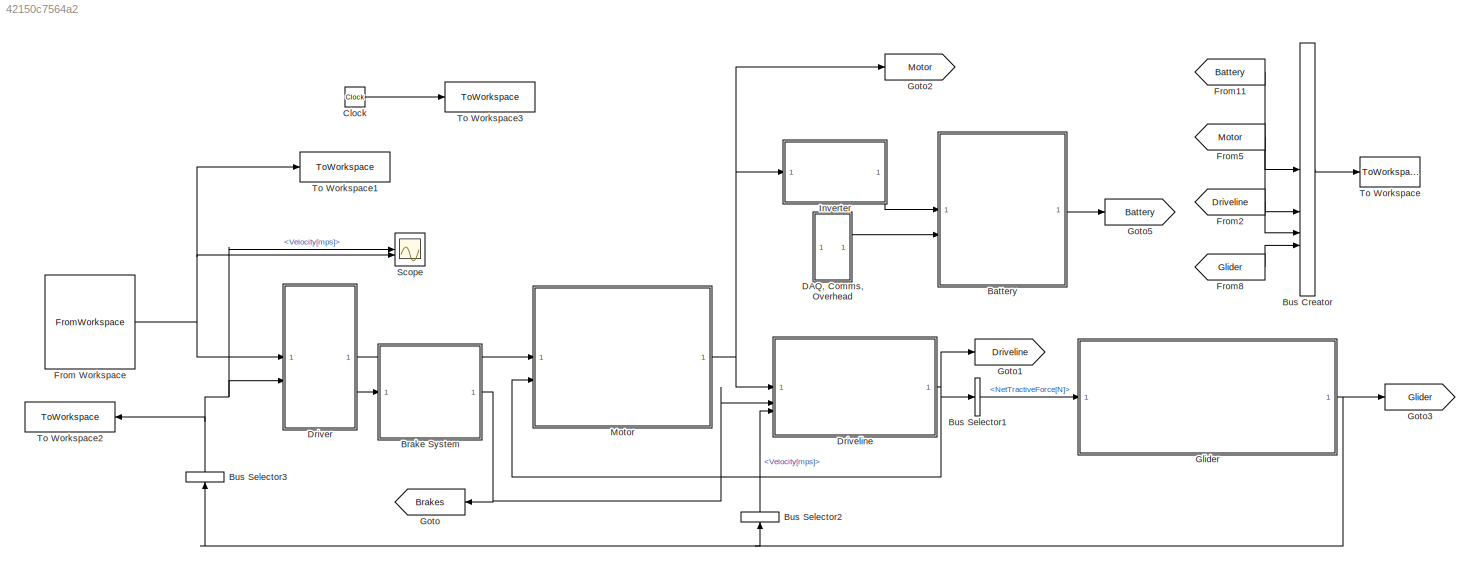
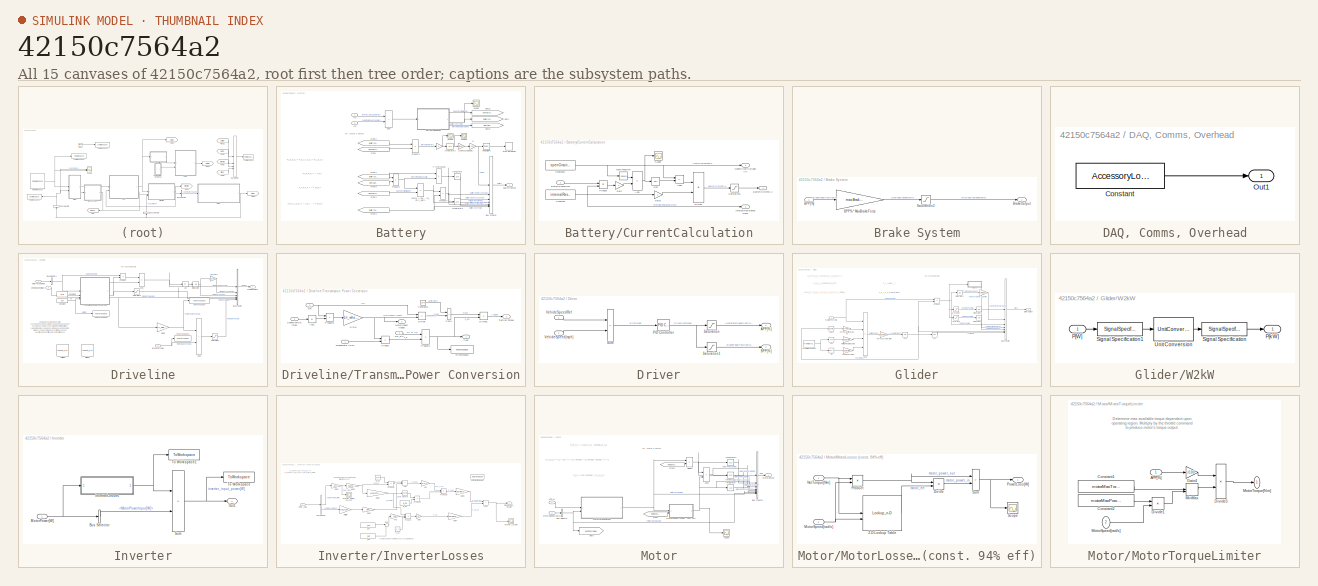
[diagram: thumbnail index - all 15 canvases of the model, root first then tree order]
MODEL slx_42150c7564a2
KIND model
CONFIG AbsTol = auto
CONFIG EnableMultiTasking = off
CONFIG FixedStep = auto
CONFIG MaxStep = auto
CONFIG MinStep = auto
CONFIG RelTol = 1e-3
CONFIG SampleTimeConstraint = Unconstrained
CONFIG SolverName = FixedStepAuto
CONFIG StartTime = 0.0
CONFIG StopTime = StopTime
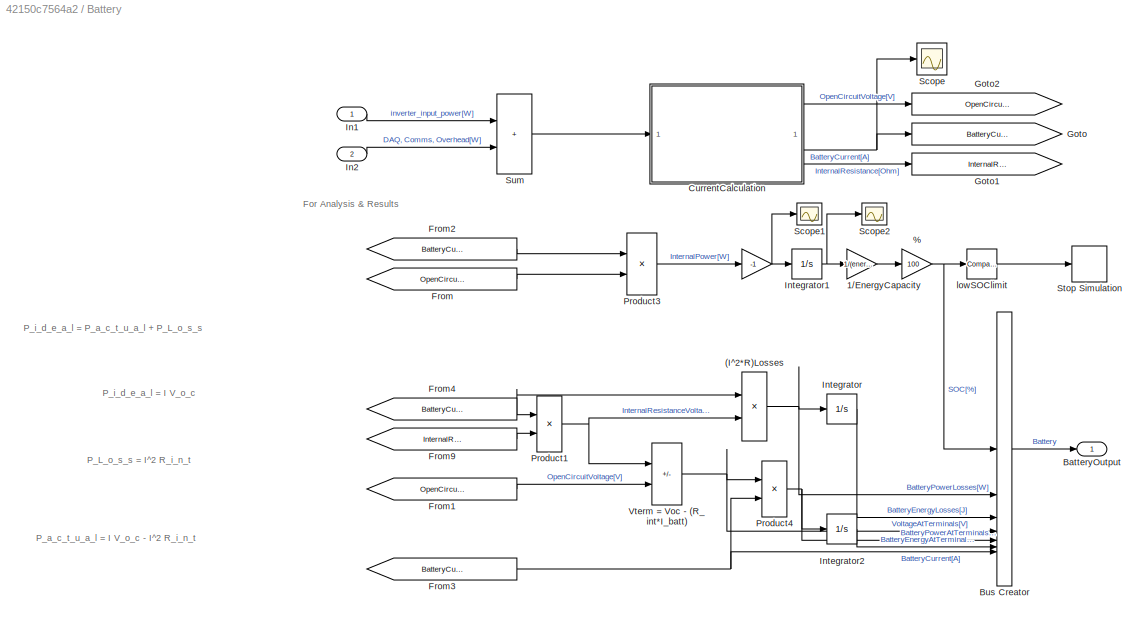
BLOCK [SubSystem] Battery
BLOCK [Gain] Battery/ 
  Gain = -1
BLOCK [Gain] Battery/%
  Gain = 100
BLOCK [Product] Battery/(I^2*R)Losses
  NameLocation = top
  RndMeth = Zero
BLOCK [Gain] Battery/1//EnergyCapacity
  Gain = 1/(energyCapacity*3600*1000)
BLOCK [Outport] Battery/BatteryOutput
  VectorParamsAs1DForOutWhenUnconnected = off
BLOCK [BusCreator] Battery/Bus Creator
  DisplayOption = bar
  InheritFromInputs = on
  Inputs = 7
BLOCK [SubSystem] Battery/CurrentCalculation
BLOCK [Sum] Battery/CurrentCalculation/Add
  IconShape = rectangular
  Inputs = +-
BLOCK [Sum] Battery/CurrentCalculation/Add1
  IconShape = rectangular
  Inputs = +-
BLOCK [Outport] Battery/CurrentCalculation/BatteryCurrent[A]
  Port = 2
  VectorParamsAs1DForOutWhenUnconnected = off
BLOCK [Inport] Battery/CurrentCalculation/BatteryPower[W]
BLOCK [Constant] Battery/CurrentCalculation/Constant
  Value = internalResistance
BLOCK [Constant] Battery/CurrentCalculation/Constant1
  Value = openCircuitVoltage
BLOCK [Product] Battery/CurrentCalculation/Divide
  Inputs = */
BLOCK [Gain] Battery/CurrentCalculation/Gain
  Gain = 4
BLOCK [Gain] Battery/CurrentCalculation/Gain1
  Gain = 2
BLOCK [Outport] Battery/CurrentCalculation/InternalResistance[Ohm]
  Port = 3
  VectorParamsAs1DForOutWhenUnconnected = off
BLOCK [Math] Battery/CurrentCalculation/Math Function
  Operator = square
  SignedPower = on
BLOCK [Outport] Battery/CurrentCalculation/OpenCircuitVoltage[V]
  VectorParamsAs1DForOutWhenUnconnected = off
BLOCK [Product] Battery/CurrentCalculation/Product
  RndMeth = Zero
BLOCK [Saturate] Battery/CurrentCalculation/Saturation1
  LowerLimit = 0
  UpperLimit = 40
  ZeroCross = off
BLOCK [Scope] Battery/CurrentCalculation/Scope
  Floating = off
  NumInputPorts = 1
  ScopeSpecificationString = Simulink.scopes.TimeScopeBlockCfg('CurrentConfiguration', extmgr.ConfigurationSet(extmgr.Configuration('Core','General UI',true),extmgr.Configuration('Core','Source UI',true),extmgr.Configuration('Sources','WiredSimulink',true,'DataLoggingVariableName','ScopeData3'),extmgr.Configuration('Visuals','Time Domain',true,'SerializedDisplays',{struct('MinYLimReal','2571.89407','MaxYLimReal','2717.81177',...<+1525ch>
BLOCK [Sqrt] Battery/CurrentCalculation/Sqrt
BLOCK [From] Battery/From
  GotoTag = OpenCircuitVoltage_V
BLOCK [From] Battery/From1
  GotoTag = OpenCircuitVoltage_V
BLOCK [From] Battery/From2
  GotoTag = BatteryCurrent_A
BLOCK [From] Battery/From3
  GotoTag = BatteryCurrent_A
BLOCK [From] Battery/From4
  GotoTag = BatteryCurrent_A
BLOCK [From] Battery/From9
  GotoTag = InternalResistance_Ohm
BLOCK [Goto] Battery/Goto
  GotoTag = BatteryCurrent_A
BLOCK [Goto] Battery/Goto1
  GotoTag = InternalResistance_Ohm
BLOCK [Goto] Battery/Goto2
  GotoTag = OpenCircuitVoltage_V
BLOCK [Inport] Battery/In1
BLOCK [Inport] Battery/In2
  Port = 2
BLOCK [Integrator] Battery/Integrator
  ZeroCross = off
BLOCK [Integrator] Battery/Integrator1
  InitialCondition = energyCapacity*3600*1000*initialSOC
  ZeroCross = off
BLOCK [Integrator] Battery/Integrator2
BLOCK [Product] Battery/Product1
  RndMeth = Zero
BLOCK [Product] Battery/Product3
  RndMeth = Zero
BLOCK [Product] Battery/Product4
  RndMeth = Zero
BLOCK [Scope] Battery/Scope
  Floating = off
  NumInputPorts = 1
  ScopeSpecificationString = Simulink.scopes.TimeScopeBlockCfg('CurrentConfiguration', extmgr.ConfigurationSet(extmgr.Configuration('Core','General UI',true),extmgr.Configuration('Core','Source UI',true),extmgr.Configuration('Sources','WiredSimulink',true),extmgr.Configuration('Visuals','Time Domain',true,'SerializedDisplays',{struct('MinYLimReal','-1.31995','MaxYLimReal','12.63193','YLabelReal','','MinYLimMag','0.00000','Max...<+1459ch>
BLOCK [Scope] Battery/Scope1
  Floating = off
  NumInputPorts = 1
  ScopeSpecificationString = Simulink.scopes.TimeScopeBlockCfg('CurrentConfiguration', extmgr.ConfigurationSet(extmgr.Configuration('Core','General UI',true),extmgr.Configuration('Core','Source UI',true),extmgr.Configuration('Sources','WiredSimulink',true,'DataLoggingVariableName','ScopeData1'),extmgr.Configuration('Visuals','Time Domain',true,'SerializedDisplays',{struct('MinYLimReal','-667.87189','MaxYLimReal','69.87434','Y...<+1515ch>
BLOCK [Scope] Battery/Scope2
  Floating = off
  NumInputPorts = 1
  ScopeSpecificationString = Simulink.scopes.TimeScopeBlockCfg('CurrentConfiguration', extmgr.ConfigurationSet(extmgr.Configuration('Core','General UI',true),extmgr.Configuration('Core','Source UI',true),extmgr.Configuration('Sources','WiredSimulink',true,'DataLoggingVariableName','ScopeData2'),extmgr.Configuration('Visuals','Time Domain',true,'SerializedDisplays',{struct('MinYLimReal','6360199.30492','MaxYLimReal','6893311.1...<+1559ch>
BLOCK [Stop] Battery/Stop Simulation
BLOCK [Sum] Battery/Sum
  IconShape = rectangular
BLOCK [Sum] Battery/Vterm = Voc - (R_int*I_batt)
  IconShape = rectangular
  Inputs = -+
BLOCK [Reference] Battery/lowSOClimit  REF=simulink/Logic and Bit
Operations/Compare
To Constant
  SourceBlock = simulink/Logic and Bit\nOperations/Compare\nTo Constant
  SourceType = Compare To Constant
BLOCK [SubSystem] Brake System
BLOCK [Gain] Brake System/BPP% * MaxBrakeForce
  Gain = maxBrakeForce/100
BLOCK [Inport] Brake System/BPP[%]
BLOCK [Outport] Brake System/BrakeOutput
  VectorParamsAs1DForOutWhenUnconnected = off
BLOCK [Saturate] Brake System/Saturation2
  LowerLimit = -maxBrakeForce
  UpperLimit = 0
  ZeroCross = off
BLOCK [BusCreator] Bus Creator
  DisplayOption = bar
  InheritFromInputs = on
  Inputs = 4
BLOCK [BusSelector] Bus Selector1
  OutputSignals = NetTractiveForce[N]
BLOCK [BusSelector] Bus Selector2
  NameLocation = right
  OutputSignals = Velocity[mps]
BLOCK [BusSelector] Bus Selector3
  NameLocation = right
  OutputSignals = Velocity[mps]
BLOCK [Clock] Clock
BLOCK [SubSystem] DAQ, Comms, Overhead
BLOCK [Constant] DAQ, Comms, Overhead/Constant
  Value = AccessoryLoad
BLOCK [Outport] DAQ, Comms, Overhead/Out1
BLOCK [SubSystem] Driveline
BLOCK [Gain] Driveline/1//Rw1
  Gain = 1/r_wheel
BLOCK [Abs] Driveline/Abs
  SaturateOnIntegerOverflow = off
  ZeroCross = off
BLOCK [Sum] Driveline/Add3
  IconShape = rectangular
BLOCK [Inport] Driveline/BrakeForce[N]
  Port = 2
BLOCK [BusCreator] Driveline/Bus Creator
  DisplayOption = bar
  InheritFromInputs = on
  Inputs = 6
BLOCK [BusSelector] Driveline/Bus Selector1
  OutputSignals = MotorTorque[Nm]
BLOCK [Constant] Driveline/Constant
  Value = 0.97
BLOCK [Constant] Driveline/Constant1
  Value = GR
BLOCK [Outport] Driveline/DrivelineOutput
  VectorParamsAs1DForOutWhenUnconnected = off
BLOCK [Lookup_n-D] Driveline/Eff of GR
  BreakpointsForDimension1 = GRs
  InputPortMap = u0
  InternalRulePriority = Speed
  NumberOfTableDimensions = 1
  RndMeth = Simplest
  Table = transmission_efficiency
BLOCK [Integrator] Driveline/Integrator
  ZeroCross = off
BLOCK [Gain] Driveline/J_to_kWh
  Gain = .000278/1000
BLOCK [Inport] Driveline/MotorTorque[Nm]
BLOCK [Product] Driveline/Product
BLOCK [Saturate] Driveline/Saturation1
  LowerLimit = -maxBrakeForce
  UpperLimit = 5000
  ZeroCross = off
BLOCK [Saturate] Driveline/Saturation3
  LowerLimit = 0.00001
  UpperLimit = inf
  ZeroCross = off
BLOCK [Lookup_n-D] Driveline/Shift Map
  BreakpointsForDimension1 = [1:3]
  BreakpointsForDimension2 = [1:3]
  InputPortMap = u0,u1
  InternalRulePriority = Speed
  RndMeth = Simplest
BLOCK [Sum] Driveline/Sum
  IconShape = rectangular
  Inputs = +-
BLOCK [ToWorkspace] Driveline/To Workspace
  FixptAsFi = on
  MaxDataPoints = inf
  SampleTime = -1
  VariableName = positiveTractiveForceOut
BLOCK [ToWorkspace] Driveline/To Workspace1
  FixptAsFi = on
  MaxDataPoints = inf
  SampleTime = -1
  VariableName = frictionBrakingForceOut
BLOCK [ToWorkspace] Driveline/To Workspace2
  FixptAsFi = on
  MaxDataPoints = inf
  SampleTime = -1
  VariableName = drivelineEfficiencyOut
BLOCK [SubSystem] Driveline/Transmission Power Conversion
BLOCK [Abs] Driveline/Transmission Power Conversion/Abs1
  SaturateOnIntegerOverflow = off
  ZeroCross = off
BLOCK [Constant] Driveline/Transmission Power Conversion/Constant2
  Value = 1e-6
BLOCK [Product] Driveline/Transmission Power Conversion/Divide
  Inputs = /*
BLOCK [Product] Driveline/Transmission Power Conversion/Divide1
  Inputs = /*
BLOCK [Gain] Driveline/Transmission Power Conversion/G//Rw
  Gain = 1/r_wheel
BLOCK [Inport] Driveline/Transmission Power Conversion/GR
  Port = 3
BLOCK [Inport] Driveline/Transmission Power Conversion/GR_Eff
  Port = 4
BLOCK [Outport] Driveline/Transmission Power Conversion/MotorSpeed (radps)
  Port = 2
BLOCK [Outport] Driveline/Transmission Power Conversion/Pout
BLOCK [Product] Driveline/Transmission Power Conversion/Product
BLOCK [Product] Driveline/Transmission Power Conversion/Product1
BLOCK [Product] Driveline/Transmission Power Conversion/Product2
BLOCK [Inport] Driveline/Transmission Power Conversion/SpeedVehicle (mps)
  Port = 2
BLOCK [Sum] Driveline/Transmission Power Conversion/Sum1
  IconShape = rectangular
BLOCK [ToWorkspace] Driveline/Transmission Power Conversion/To Workspace
  FixptAsFi = on
  MaxDataPoints = inf
  SampleTime = -1
  VariableName = positiveTractivePowerOut
BLOCK [Inport] Driveline/Transmission Power Conversion/TorqueMotor [Nm]
BLOCK [Outport] Driveline/Transmission Power Conversion/Traction Torque
  Port = 3
BLOCK [Inport] Driveline/VehicleSpeed[mps]
  Port = 3
BLOCK [SubSystem] Driver
  AncestorBlock = Driver_Glider_Library/Driver
BLOCK [Outport] Driver/APP[%]
  VectorParamsAs1DForOutWhenUnconnected = off
BLOCK [Outport] Driver/BPP[%]
  Port = 2
  VectorParamsAs1DForOutWhenUnconnected = off
BLOCK [Reference] Driver/PID Controller  REF=slpidlib/PID Controller
  SourceBlock = slpidlib/PID Controller
  SourceType = PID 1dof
BLOCK [Saturate] Driver/Saturation
  LowerLimit = 0
  UpperLimit = 100
  ZeroCross = off
BLOCK [Saturate] Driver/Saturation1
  LowerLimit = -100
  UpperLimit = 0
  ZeroCross = off
BLOCK [Sum] Driver/Sum
  IconShape = rectangular
  Inputs = +-
BLOCK [Inport] Driver/VehicleSpeedRef
BLOCK [Inport] Driver/VehicleSpeed[mph]
  Port = 2
BLOCK [FromWorkspace] From Workspace
  SampleTime = time_step
  VariableName = timeSpeedData
BLOCK [From] From11
  GotoTag = Battery
BLOCK [From] From2
  GotoTag = Driveline
BLOCK [From] From5
  GotoTag = Motor
BLOCK [From] From8
  GotoTag = Glider
BLOCK [SubSystem] Glider
BLOCK [Gain] Glider/AerodynamicDrag[N]
  AttributesFormatString = %<Gain>
  Gain = 0.5*rho*cdaf
BLOCK [BusCreator] Glider/Bus Creator
  DisplayOption = bar
  InheritFromInputs = on
  Inputs = 7
BLOCK [Trigonometry] Glider/Cos
  Operator = cos
BLOCK [Saturate] Glider/E_brake
  LowerLimit = -inf
  UpperLimit = 0
BLOCK [Saturate] Glider/E_propel
  LowerLimit = 0
  UpperLimit = inf
BLOCK [Gain] Glider/Force2Acceleration
  AttributesFormatString = %<Gain>
  Gain = 1/massVeh
BLOCK [FromWorkspace] Glider/From Workspace
  VariableName = timeThetaData
BLOCK [Outport] Glider/GliderOutput
  VectorParamsAs1DForOutWhenUnconnected = off
BLOCK [Gain] Glider/GradeForce[N]
  Gain = massVeh*gravity
BLOCK [Integrator] Glider/Integrator1
BLOCK [Integrator] Glider/Integrator2
BLOCK [Integrator] Glider/Integrator4
BLOCK [Gain] Glider/J2kWh
  Gain = 0.000278/1000
BLOCK [Product] Glider/Product
BLOCK [Gain] Glider/RollingResistance[N]
  Gain = massVeh*gravity*Crr
BLOCK [Trigonometry] Glider/Sin
BLOCK [Sum] Glider/Sum
  IconShape = rectangular
  Inputs = +---
BLOCK [Math] Glider/Vel^2
  Operator = magnitude^2
  SignedPower = on
BLOCK [SubSystem] Glider/W2kW
BLOCK [Inport] Glider/W2kW/P[W]
BLOCK [Outport] Glider/W2kW/P[kW]
  VectorParamsAs1DForOutWhenUnconnected = off
BLOCK [SignalSpecification] Glider/W2kW/Signal Specification
  Unit = kW
BLOCK [SignalSpecification] Glider/W2kW/Signal Specification1
  Unit = W
BLOCK [UnitConversion] Glider/W2kW/Unit Conversion
BLOCK [Integrator] Glider/a2v
BLOCK [Inport] Glider/tractiveForce[N]
BLOCK [Integrator] Glider/v2x
BLOCK [Goto] Goto
  GotoTag = Brakes
  NameLocation = top
BLOCK [Goto] Goto1
  GotoTag = Driveline
BLOCK [Goto] Goto2
  GotoTag = Motor
BLOCK [Goto] Goto3
  GotoTag = Glider
BLOCK [Goto] Goto5
  GotoTag = Battery
BLOCK [SubSystem] Inverter
BLOCK [BusSelector] Inverter/Bus Selector
  OutputSignals = MotorPowerInput[W]
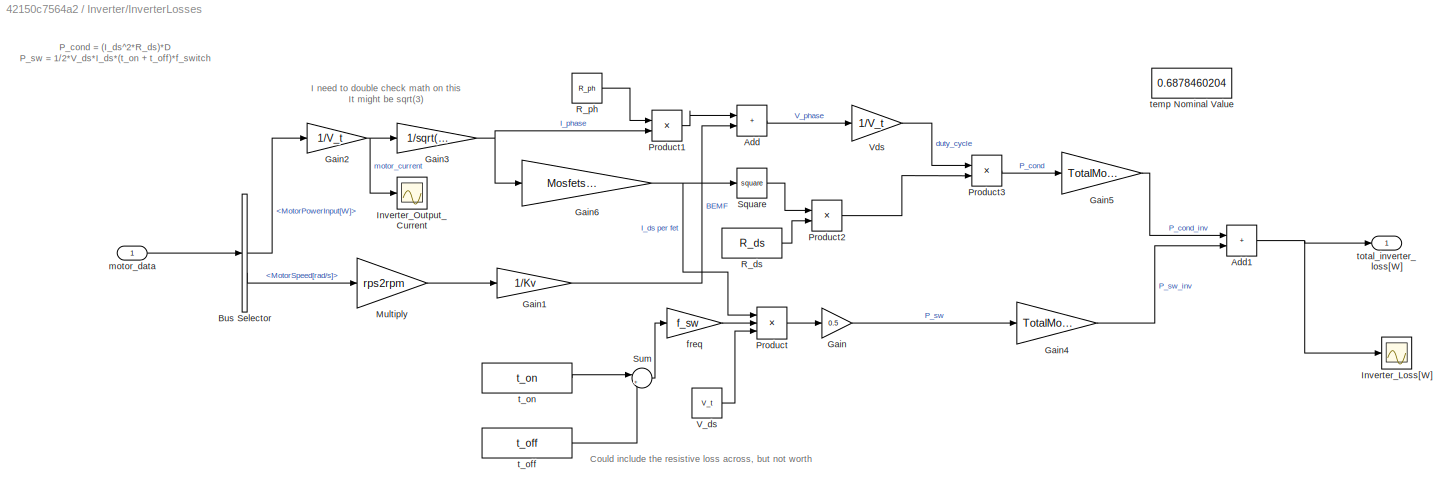
BLOCK [SubSystem] Inverter/InverterLosses
BLOCK [Sum] Inverter/InverterLosses/Add
  IconShape = rectangular
BLOCK [Sum] Inverter/InverterLosses/Add1
  IconShape = rectangular
BLOCK [BusSelector] Inverter/InverterLosses/Bus Selector
  OutputSignals = MotorPowerInput[W],MotorSpeed[rad/s]
BLOCK [Gain] Inverter/InverterLosses/Gain
  Gain = 0.5
BLOCK [Gain] Inverter/InverterLosses/Gain1
  Gain = 1/Kv
BLOCK [Gain] Inverter/InverterLosses/Gain2
  Gain = 1/V_t
BLOCK [Gain] Inverter/InverterLosses/Gain3
  Gain = 1/sqrt(2)
BLOCK [Gain] Inverter/InverterLosses/Gain4
  Gain = TotalMosfets
BLOCK [Gain] Inverter/InverterLosses/Gain5
  Gain = TotalMosfets
BLOCK [Gain] Inverter/InverterLosses/Gain6
  Gain = MosfetsPerPhase/2
BLOCK [Scope] Inverter/InverterLosses/Inverter_Loss[W]
  Floating = off
  NumInputPorts = 1
  ScopeSpecificationString = Simulink.scopes.TimeScopeBlockCfg('CurrentConfiguration', extmgr.ConfigurationSet(extmgr.Configuration('Core','General UI',true),extmgr.Configuration('Core','Source UI',true),extmgr.Configuration('Sources','WiredSimulink',true,'DataLoggingVariableName','ScopeData1'),extmgr.Configuration('Visuals','Time Domain',true,'SerializedDisplays',{struct('MinYLimReal','-2.26982','MaxYLimReal','20.42841','YLa...<+1486ch>
BLOCK [Scope] Inverter/InverterLosses/Inverter_Output_Current
  Floating = off
  NumInputPorts = 1
  ScopeSpecificationString = Simulink.scopes.TimeScopeBlockCfg('CurrentConfiguration', extmgr.ConfigurationSet(extmgr.Configuration('Core','General UI',true),extmgr.Configuration('Core','Source UI',true),extmgr.Configuration('Sources','WiredSimulink',true,'DataLoggingVariableName','ScopeData1'),extmgr.Configuration('Visuals','Time Domain',true,'SerializedDisplays',{struct('MinYLimReal','-3.24596','MaxYLimReal','29.21363','YLa...<+1494ch>
BLOCK [Gain] Inverter/InverterLosses/Multiply
  Gain = rps2rpm
BLOCK [Product] Inverter/InverterLosses/Product
  Inputs = 3
BLOCK [Product] Inverter/InverterLosses/Product1
BLOCK [Product] Inverter/InverterLosses/Product2
BLOCK [Product] Inverter/InverterLosses/Product3
BLOCK [Constant] Inverter/InverterLosses/R_ds
  Value = R_ds
BLOCK [Constant] Inverter/InverterLosses/R_ph
  Value = R_ph
BLOCK [Math] Inverter/InverterLosses/Square
  Operator = square
BLOCK [Sum] Inverter/InverterLosses/Sum
  Inputs = |++
BLOCK [Constant] Inverter/InverterLosses/V_ds
  Value = V_t
BLOCK [Gain] Inverter/InverterLosses/Vds
  Gain = 1/V_t
BLOCK [Gain] Inverter/InverterLosses/freq
  Gain = f_sw
BLOCK [Inport] Inverter/InverterLosses/motor_data
BLOCK [Constant] Inverter/InverterLosses/t_off
  Value = t_off
BLOCK [Constant] Inverter/InverterLosses/t_on
  Value = t_on
BLOCK [Constant] Inverter/InverterLosses/temp Nominal Value
  Value = 0.6878460204
BLOCK [Outport] Inverter/InverterLosses/total_inverter_loss[W]
BLOCK [Inport] Inverter/MotorPower[W]
BLOCK [Outport] Inverter/Out1
BLOCK [Sum] Inverter/Sum
  IconShape = rectangular
BLOCK [ToWorkspace] Inverter/To Workspace
  FixptAsFi = on
  MaxDataPoints = inf
  SampleTime = -1
  VariableName = inverterPowerInput
BLOCK [ToWorkspace] Inverter/To Workspace1
  FixptAsFi = on
  MaxDataPoints = inf
  SampleTime = -1
  VariableName = inverterLosses
BLOCK [SubSystem] Motor
BLOCK [Inport] Motor/APP[%]
BLOCK [Sum] Motor/Add3
  IconShape = rectangular
BLOCK [BusCreator] Motor/Bus Creator
  DisplayOption = bar
  InheritFromInputs = on
  Inputs = 8
BLOCK [BusSelector] Motor/Bus Selector
  OutputSignals = MotorSpeed[rad/s]
BLOCK [Product] Motor/Divide4
  Inputs = **
BLOCK [From] Motor/From
  GotoTag = MotorSpeed_radps
BLOCK [From] Motor/From1
  GotoTag = MotorSpeed_radps
BLOCK [Goto] Motor/Goto
  GotoTag = MotorSpeed_radps
BLOCK [Integrator] Motor/Integrator
  ZeroCross = off
BLOCK [Integrator] Motor/Integrator1
  ZeroCross = off
BLOCK [Integrator] Motor/Integrator2
  ZeroCross = off
BLOCK [SubSystem] Motor/MotorLosses (const. 94% eff)
BLOCK [Lookup_n-D] Motor/MotorLosses (const. 94% eff)/2-D Lookup Table
  BreakpointsForDimension1 = torqueBreakpoints
  BreakpointsForDimension2 = omegaBreakpoints
  InputPortMap = u0,u1
  InternalRulePriority = Speed
  RndMeth = Simplest
  Table = motorEff
BLOCK [Product] Motor/MotorLosses (const. 94% eff)/Divide
  Inputs = */
BLOCK [Inport] Motor/MotorLosses (const. 94% eff)/MotorSpeed[rad//s]
  Port = 2
BLOCK [Inport] Motor/MotorLosses (const. 94% eff)/NetTorque[Nm]
BLOCK [Outport] Motor/MotorLosses (const. 94% eff)/PowerLoss[W]
  VectorParamsAs1DForOutWhenUnconnected = off
BLOCK [Product] Motor/MotorLosses (const. 94% eff)/Product
BLOCK [Scope] Motor/MotorLosses (const. 94% eff)/Scope
  Floating = off
  NumInputPorts = 1
  ScopeSpecificationString = Simulink.scopes.TimeScopeBlockCfg('CurrentConfiguration', extmgr.ConfigurationSet(extmgr.Configuration('Core','General UI',true),extmgr.Configuration('Core','Source UI',true),extmgr.Configuration('Sources','WiredSimulink',true,'DataLoggingVariableName','ScopeData1'),extmgr.Configuration('Visuals','Time Domain',true,'SerializedDisplays',{struct('MinYLimReal','-47.45017','MaxYLimReal','427.05151','Y...<+1487ch>
BLOCK [Sum] Motor/MotorLosses (const. 94% eff)/Sum
  IconShape = rectangular
  Inputs = -+
BLOCK [Outport] Motor/MotorOutput
  VectorParamsAs1DForOutWhenUnconnected = off
BLOCK [Inport] Motor/MotorSpeed[rad//s]
  Port = 2
BLOCK [SubSystem] Motor/MotorTorqueLimiter
BLOCK [Inport] Motor/MotorTorqueLimiter/APP[%]
BLOCK [Constant] Motor/MotorTorqueLimiter/Constant1
  Value = motorMaxTorque
BLOCK [Constant] Motor/MotorTorqueLimiter/Constant2
  Value = motorMaxPower
BLOCK [Product] Motor/MotorTorqueLimiter/Divide1
  Inputs = */
BLOCK [Product] Motor/MotorTorqueLimiter/Divide3
  Inputs = **
BLOCK [Gain] Motor/MotorTorqueLimiter/Gain4
  Gain = 1/100
BLOCK [MinMax] Motor/MotorTorqueLimiter/MinMax
  Inputs = 2
BLOCK [Inport] Motor/MotorTorqueLimiter/MotorSpeed[rad//s]
  Port = 2
BLOCK [Outport] Motor/MotorTorqueLimiter/MotorTorque[Nm]
  VectorParamsAs1DForOutWhenUnconnected = off
BLOCK [Scope] Motor/Scope
  Floating = off
  NumInputPorts = 1
  ScopeSpecificationString = Simulink.scopes.TimeScopeBlockCfg('CurrentConfiguration', extmgr.ConfigurationSet(extmgr.Configuration('Core','General UI',true),extmgr.Configuration('Core','Source UI',true),extmgr.Configuration('Sources','WiredSimulink',true,'DataLoggingVariableName','ScopeData4'),extmgr.Configuration('Visuals','Time Domain',true,'SerializedDisplays',{struct('MinYLimReal','-2.71881','MaxYLimReal','24.46928','YLa...<+1526ch>
BLOCK [Scope] Scope
  Floating = off
  NumInputPorts = 2
  ScopeSpecificationString = Simulink.scopes.TimeScopeBlockCfg('CurrentConfiguration', extmgr.ConfigurationSet(extmgr.Configuration('Core','General UI',true),extmgr.Configuration('Core','Source UI',true),extmgr.Configuration('Sources','WiredSimulink',true),extmgr.Configuration('Visuals','Time Domain',true,'SerializedDisplays',{struct('MinYLimReal','-1.09612','MaxYLimReal','9.6873','YLabelReal','','MinYLimMag','0.00000','MaxYL...<+1465ch>
BLOCK [ToWorkspace] To Workspace
  FixptAsFi = on
  MaxDataPoints = inf
  SampleTime = -1
  VariableName = results
BLOCK [ToWorkspace] To Workspace1
  FixptAsFi = on
  MaxDataPoints = inf
  SampleTime = -1
  VariableName = speedCommand
BLOCK [ToWorkspace] To Workspace2
  FixptAsFi = on
  MaxDataPoints = inf
  NameLocation = top
  SampleTime = -1
  VariableName = speedVehicle
BLOCK [ToWorkspace] To Workspace3
  FixptAsFi = on
  MaxDataPoints = inf
  SampleTime = -1
  VariableName = simTime
ANNOTATION Battery: P_L_o_s_s = I^2 R_i_n_t
ANNOTATION Battery: For Analysis & Results
ANNOTATION Battery: P_a_c_t_u_a_l = I V_o_c - I^2 R_i_n_t
ANNOTATION Battery: P_i_d_e_a_l = I V_o_c
ANNOTATION Battery: P_i_d_e_a_l = P_a_c_t_u_a_l + P_L_o_s_s
ANNOTATION Driveline: For Analysis & Results
ANNOTATION Driveline: Idea is that you select a Gear Ratio based on the vehicle's traction torque demand and speed such that you're always operating in the optimally efficient region of the motor. You'd generate map based on the motor efficiency contour plot. However, shift maps have an upshift and downshift to avoid rapid shifting back and forth at the boundry, so more complicated logic will be required to generate th...<+82ch>
ANNOTATION Glider: F_a_e_r_o = 1/2 \rho C_d A_f V ^2
ANNOTATION Glider: F_g_r_a_d_e = m g sin(\theta)
ANNOTATION Glider: F_r_r = m g C_r_r
ANNOTATION Glider: F_t_r = F_a_e_r_o + F_i + F_g_r_a_d_e + F_r_r
ANNOTATION Glider: For Analysis & Results
ANNOTATION Glider: a = (F_t_r - F_a_e_r_o - F_g_r_a_d_e - F_r_r) \div m_i
ANNOTATION Inverter/InverterLosses: P_cond = (I_ds^2*R_ds)*D P_sw = 1/2*V_ds*I_ds*(t_on + t_off)*f_switch
ANNOTATION Inverter/InverterLosses: Could include the resistive loss across, but not worth
ANNOTATION Inverter/InverterLosses: I need to double check math on this It might be sqrt(3)
ANNOTATION Motor: For Analysis & Results
ANNOTATION Motor: P_L_o_s_s = k_c \tau ^2 + k_i \omega + k_\omega \omega ^3 + C
ANNOTATION Motor: P_i_n = \tau \omega + P_L_o_s_s
ANNOTATION Motor: P_m_o_t = \tau_m_o_t \omega_m_o_t
ANNOTATION Motor/MotorTorqueLimiter: Determine max available torque dependent upon operating region. Multiply by the throttle command to produce motor's torque output.
NET Battery/ :1 -> Battery/Integrator1:1, Battery/Scope1:1
NET Battery/%:1 -> Battery/Bus Creator:1, Battery/lowSOClimit:1
NET Battery/(I^2*R)Losses:1 -> Battery/Bus Creator:2, Battery/Integrator:1
LINE Battery/1//EnergyCapacity:1 -> Battery/%:1
LINE Battery/Bus Creator:1 -> Battery/BatteryOutput:1
LINE Battery/CurrentCalculation/Add1:1 -> Battery/CurrentCalculation/Divide:1
NET Battery/CurrentCalculation/Add:1 -> Battery/CurrentCalculation/Scope:1, Battery/CurrentCalculation/Sqrt:1
LINE Battery/CurrentCalculation/BatteryPower[W]:1 -> Battery/CurrentCalculation/Product:1
NET Battery/CurrentCalculation/Constant1:1 -> Battery/CurrentCalculation/Add1:1, Battery/CurrentCalculation/Math Function:1, Battery/CurrentCalculation/OpenCircuitVoltage[V]:1
NET Battery/CurrentCalculation/Constant:1 -> Battery/CurrentCalculation/Gain1:1, Battery/CurrentCalculation/InternalResistance[Ohm]:1, Battery/CurrentCalculation/Product:2
LINE Battery/CurrentCalculation/Divide:1 -> Battery/CurrentCalculation/Saturation1:1
LINE Battery/CurrentCalculation/Gain1:1 -> Battery/CurrentCalculation/Divide:2
LINE Battery/CurrentCalculation/Gain:1 -> Battery/CurrentCalculation/Add:2
LINE Battery/CurrentCalculation/Math Function:1 -> Battery/CurrentCalculation/Add:1
LINE Battery/CurrentCalculation/Product:1 -> Battery/CurrentCalculation/Gain:1
LINE Battery/CurrentCalculation/Saturation1:1 -> Battery/CurrentCalculation/BatteryCurrent[A]:1
LINE Battery/CurrentCalculation/Sqrt:1 -> Battery/CurrentCalculation/Add1:2
LINE Battery/CurrentCalculation:1 -> Battery/Goto2:1
NET Battery/CurrentCalculation:2 -> Battery/Goto:1, Battery/Scope:1
LINE Battery/CurrentCalculation:3 -> Battery/Goto1:1
LINE Battery/From1:1 -> Battery/Vterm = Voc - (R_int*I_batt):2
LINE Battery/From2:1 -> Battery/Product3:1
NET Battery/From3:1 -> Battery/Bus Creator:7, Battery/Product4:2
NET Battery/From4:1 -> Battery/(I^2*R)Losses:1, Battery/Product1:1
LINE Battery/From9:1 -> Battery/Product1:2
LINE Battery/From:1 -> Battery/Product3:2
LINE Battery/In1:1 -> Battery/Sum:1
LINE Battery/In2:1 -> Battery/Sum:2
NET Battery/Integrator1:1 -> Battery/1//EnergyCapacity:1, Battery/Scope2:1
LINE Battery/Integrator2:1 -> Battery/Bus Creator:6
LINE Battery/Integrator:1 -> Battery/Bus Creator:3
NET Battery/Product1:1 -> Battery/(I^2*R)Losses:2, Battery/Vterm = Voc - (R_int*I_batt):1
LINE Battery/Product3:1 -> Battery/ :1
NET Battery/Product4:1 -> Battery/Bus Creator:5, Battery/Integrator2:1
LINE Battery/Sum:1 -> Battery/CurrentCalculation:1
NET Battery/Vterm = Voc - (R_int*I_batt):1 -> Battery/Bus Creator:4, Battery/Product4:1
LINE Battery/lowSOClimit:1 -> Battery/Stop Simulation:1
LINE Battery:1 -> Goto5:1
LINE Brake System/BPP% * MaxBrakeForce:1 -> Brake System/Saturation2:1
LINE Brake System/BPP[%]:1 -> Brake System/BPP% * MaxBrakeForce:1
LINE Brake System/Saturation2:1 -> Brake System/BrakeOutput:1
NET Brake System:1 -> Driveline:2, Goto:1
LINE Bus Creator:1 -> To Workspace:1
LINE Bus Selector1:1 -> Glider:1
LINE Bus Selector2:1 -> Driveline:3
NET Bus Selector3:1 -> Driver:2, Scope:1, To Workspace2:1
LINE Clock:1 -> To Workspace3:1
LINE DAQ, Comms, Overhead/Constant:1 -> DAQ, Comms, Overhead/Out1:1
LINE DAQ, Comms, Overhead:1 -> Battery:2
NET Driveline/1//Rw1:1 -> Driveline/Add3:1, Driveline/To Workspace:1
LINE Driveline/Abs:1 -> Driveline/Integrator:1
LINE Driveline/Add3:1 -> Driveline/Saturation1:1
NET Driveline/BrakeForce[N]:1 -> Driveline/Add3:2, Driveline/To Workspace1:1
LINE Driveline/Bus Creator:1 -> Driveline/DrivelineOutput:1
NET Driveline/Bus Selector1:1 -> Driveline/Product:1, Driveline/Transmission Power Conversion:1
LINE Driveline/Constant1:1 -> Driveline/Transmission Power Conversion:3
NET Driveline/Constant:1 -> Driveline/To Workspace2:1, Driveline/Transmission Power Conversion:4
NET Driveline/Integrator:1 -> Driveline/Bus Creator:3, Driveline/J_to_kWh:1
LINE Driveline/J_to_kWh:1 -> Driveline/Bus Creator:2
LINE Driveline/MotorTorque[Nm]:1 -> Driveline/Bus Selector1:1
LINE Driveline/Product:1 -> Driveline/Sum:1
LINE Driveline/Saturation1:1 -> Driveline/Bus Creator:6
LINE Driveline/Saturation3:1 -> Driveline/Bus Creator:5
NET Driveline/Sum:1 -> Driveline/Abs:1, Driveline/Bus Creator:1
LINE Driveline/Transmission Power Conversion/Abs1:1 -> Driveline/Transmission Power Conversion/Product2:2
LINE Driveline/Transmission Power Conversion/Constant2:1 -> Driveline/Transmission Power Conversion/Sum1:1
LINE Driveline/Transmission Power Conversion/Divide1:1 -> Driveline/Transmission Power Conversion/Traction Torque:1
LINE Driveline/Transmission Power Conversion/Divide:1 -> Driveline/Transmission Power Conversion/Sum1:2
NET Driveline/Transmission Power Conversion/G//Rw:1 -> Driveline/Transmission Power Conversion/Divide:2, Driveline/Transmission Power Conversion/MotorSpeed (radps):1, Driveline/Transmission Power Conversion/Product:1
NET Driveline/Transmission Power Conversion/GR:1 -> Driveline/Transmission Power Conversion/Divide:1, Driveline/Transmission Power Conversion/Product2:1
LINE Driveline/Transmission Power Conversion/GR_Eff:1 -> Driveline/Transmission Power Conversion/Product1:1
NET Driveline/Transmission Power Conversion/Product1:1 -> Driveline/Transmission Power Conversion/Divide1:2, Driveline/Transmission Power Conversion/Pout:1, Driveline/Transmission Power Conversion/To Workspace:1
LINE Driveline/Transmission Power Conversion/Product2:1 -> Driveline/Transmission Power Conversion/G//Rw:1
LINE Driveline/Transmission Power Conversion/Product:1 -> Driveline/Transmission Power Conversion/Product1:2
LINE Driveline/Transmission Power Conversion/SpeedVehicle (mps):1 -> Driveline/Transmission Power Conversion/Abs1:1
LINE Driveline/Transmission Power Conversion/Sum1:1 -> Driveline/Transmission Power Conversion/Divide1:1
LINE Driveline/Transmission Power Conversion/TorqueMotor [Nm]:1 -> Driveline/Transmission Power Conversion/Product:2
LINE Driveline/Transmission Power Conversion:1 -> Driveline/Sum:2
NET Driveline/Transmission Power Conversion:2 -> Driveline/Product:2, Driveline/Saturation3:1
NET Driveline/Transmission Power Conversion:3 -> Driveline/1//Rw1:1, Driveline/Bus Creator:4
LINE Driveline/VehicleSpeed[mps]:1 -> Driveline/Transmission Power Conversion:2
NET Driveline:1 -> Bus Selector1:1, Goto1:1, Motor:2
LINE Driver:1 -> Motor:1
LINE Driver:2 -> Brake System:1
NET From Workspace:1 -> Driver:1, Scope:2, To Workspace1:1
LINE From11:1 -> Bus Creator:1
LINE From2:1 -> Bus Creator:3
LINE From5:1 -> Bus Creator:2
LINE From8:1 -> Bus Creator:4
LINE Glider/AerodynamicDrag[N]:1 -> Glider/Sum:2
LINE Glider/Bus Creator:1 -> Glider/GliderOutput:1
LINE Glider/Cos:1 -> Glider/RollingResistance[N]:1
LINE Glider/E_brake:1 -> Glider/Integrator2:1
LINE Glider/E_propel:1 -> Glider/Integrator1:1
LINE Glider/Force2Acceleration:1 -> Glider/a2v:1
NET Glider/From Workspace:1 -> Glider/Cos:1, Glider/Sin:1
LINE Glider/GradeForce[N]:1 -> Glider/Sum:4
LINE Glider/Integrator1:1 -> Glider/Bus Creator:4
LINE Glider/Integrator2:1 -> Glider/Bus Creator:5
LINE Glider/Integrator4:1 -> Glider/J2kWh:1
LINE Glider/J2kWh:1 -> Glider/Bus Creator:2
NET Glider/Product:1 -> Glider/Bus Creator:3, Glider/E_brake:1, Glider/E_propel:1, Glider/Integrator4:1, Glider/W2kW:1
LINE Glider/RollingResistance[N]:1 -> Glider/Sum:3
LINE Glider/Sin:1 -> Glider/GradeForce[N]:1
LINE Glider/Sum:1 -> Glider/Force2Acceleration:1
LINE Glider/Vel^2:1 -> Glider/AerodynamicDrag[N]:1
LINE Glider/W2kW/P[W]:1 -> Glider/W2kW/Signal Specification1:1
LINE Glider/W2kW/Signal Specification1:1 -> Glider/W2kW/Unit Conversion:1
LINE Glider/W2kW/Signal Specification:1 -> Glider/W2kW/P[kW]:1
LINE Glider/W2kW/Unit Conversion:1 -> Glider/W2kW/Signal Specification:1
LINE Glider/W2kW:1 -> Glider/Bus Creator:1
NET Glider/a2v:1 -> Glider/Bus Creator:6, Glider/Product:2, Glider/Vel^2:1, Glider/v2x:1
NET Glider/tractiveForce[N]:1 -> Glider/Product:1, Glider/Sum:1
LINE Glider/v2x:1 -> Glider/Bus Creator:7
NET Glider:1 -> Bus Selector2:1, Bus Selector3:1, Goto3:1
LINE Inverter/Bus Selector:1 -> Inverter/Sum:2
NET Inverter/InverterLosses/Add1:1 -> Inverter/InverterLosses/Inverter_Loss[W]:1, Inverter/InverterLosses/total_inverter_loss[W]:1
LINE Inverter/InverterLosses/Add:1 -> Inverter/InverterLosses/Vds:1
LINE Inverter/InverterLosses/Bus Selector:1 -> Inverter/InverterLosses/Gain2:1
LINE Inverter/InverterLosses/Bus Selector:2 -> Inverter/InverterLosses/Multiply:1
LINE Inverter/InverterLosses/Gain1:1 -> Inverter/InverterLosses/Add:2
NET Inverter/InverterLosses/Gain2:1 -> Inverter/InverterLosses/Gain3:1, Inverter/InverterLosses/Inverter_Output_Current:1
NET Inverter/InverterLosses/Gain3:1 -> Inverter/InverterLosses/Gain6:1, Inverter/InverterLosses/Product1:2
LINE Inverter/InverterLosses/Gain4:1 -> Inverter/InverterLosses/Add1:2
LINE Inverter/InverterLosses/Gain5:1 -> Inverter/InverterLosses/Add1:1
NET Inverter/InverterLosses/Gain6:1 -> Inverter/InverterLosses/Product:1, Inverter/InverterLosses/Square:1
LINE Inverter/InverterLosses/Gain:1 -> Inverter/InverterLosses/Gain4:1
LINE Inverter/InverterLosses/Multiply:1 -> Inverter/InverterLosses/Gain1:1
LINE Inverter/InverterLosses/Product1:1 -> Inverter/InverterLosses/Add:1
LINE Inverter/InverterLosses/Product2:1 -> Inverter/InverterLosses/Product3:2
LINE Inverter/InverterLosses/Product3:1 -> Inverter/InverterLosses/Gain5:1
LINE Inverter/InverterLosses/Product:1 -> Inverter/InverterLosses/Gain:1
LINE Inverter/InverterLosses/R_ds:1 -> Inverter/InverterLosses/Product2:2
LINE Inverter/InverterLosses/R_ph:1 -> Inverter/InverterLosses/Product1:1
LINE Inverter/InverterLosses/Square:1 -> Inverter/InverterLosses/Product2:1
LINE Inverter/InverterLosses/Sum:1 -> Inverter/InverterLosses/freq:1
LINE Inverter/InverterLosses/V_ds:1 -> Inverter/InverterLosses/Product:3
LINE Inverter/InverterLosses/Vds:1 -> Inverter/InverterLosses/Product3:1
LINE Inverter/InverterLosses/freq:1 -> Inverter/InverterLosses/Product:2
LINE Inverter/InverterLosses/motor_data:1 -> Inverter/InverterLosses/Bus Selector:1
LINE Inverter/InverterLosses/t_off:1 -> Inverter/InverterLosses/Sum:2
LINE Inverter/InverterLosses/t_on:1 -> Inverter/InverterLosses/Sum:1
NET Inverter/InverterLosses:1 -> Inverter/Sum:1, Inverter/To Workspace1:1
NET Inverter/MotorPower[W]:1 -> Inverter/Bus Selector:1, Inverter/InverterLosses:1
NET Inverter/Sum:1 -> Inverter/Out1:1, Inverter/To Workspace:1
LINE Inverter:1 -> Battery:1
LINE Motor/APP[%]:1 -> Motor/MotorTorqueLimiter:1
NET Motor/Add3:1 -> Motor/Bus Creator:3, Motor/Integrator1:1
LINE Motor/Bus Creator:1 -> Motor/MotorOutput:1
NET Motor/Bus Selector:1 -> Motor/Bus Creator:8, Motor/Goto:1, Motor/MotorTorqueLimiter:2
NET Motor/Divide4:1 -> Motor/Add3:1, Motor/Bus Creator:1, Motor/Integrator2:1
LINE Motor/From1:1 -> Motor/Divide4:2
LINE Motor/From:1 -> Motor/MotorLosses (const. 94% eff):2
LINE Motor/Integrator1:1 -> Motor/Bus Creator:4
LINE Motor/Integrator2:1 -> Motor/Bus Creator:2
LINE Motor/Integrator:1 -> Motor/Bus Creator:6
LINE Motor/MotorLosses (const. 94% eff)/2-D Lookup Table:1 -> Motor/MotorLosses (const. 94% eff)/Divide:2
LINE Motor/MotorLosses (const. 94% eff)/Divide:1 -> Motor/MotorLosses (const. 94% eff)/Sum:2
NET Motor/MotorLosses (const. 94% eff)/MotorSpeed[rad//s]:1 -> Motor/MotorLosses (const. 94% eff)/2-D Lookup Table:2, Motor/MotorLosses (const. 94% eff)/Product:2
NET Motor/MotorLosses (const. 94% eff)/NetTorque[Nm]:1 -> Motor/MotorLosses (const. 94% eff)/2-D Lookup Table:1, Motor/MotorLosses (const. 94% eff)/Product:1
NET Motor/MotorLosses (const. 94% eff)/Product:1 -> Motor/MotorLosses (const. 94% eff)/Divide:1, Motor/MotorLosses (const. 94% eff)/Sum:1
NET Motor/MotorLosses (const. 94% eff)/Sum:1 -> Motor/MotorLosses (const. 94% eff)/PowerLoss[W]:1, Motor/MotorLosses (const. 94% eff)/Scope:1
NET Motor/MotorLosses (const. 94% eff):1 -> Motor/Add3:2, Motor/Bus Creator:5, Motor/Integrator:1, Motor/Scope:1
LINE Motor/MotorSpeed[rad//s]:1 -> Motor/Bus Selector:1
LINE Motor/MotorTorqueLimiter/APP[%]:1 -> Motor/MotorTorqueLimiter/Gain4:1
LINE Motor/MotorTorqueLimiter/Constant1:1 -> Motor/MotorTorqueLimiter/MinMax:1
LINE Motor/MotorTorqueLimiter/Constant2:1 -> Motor/MotorTorqueLimiter/Divide1:1
LINE Motor/MotorTorqueLimiter/Divide1:1 -> Motor/MotorTorqueLimiter/MinMax:2
LINE Motor/MotorTorqueLimiter/Divide3:1 -> Motor/MotorTorqueLimiter/MotorTorque[Nm]:1
LINE Motor/MotorTorqueLimiter/Gain4:1 -> Motor/MotorTorqueLimiter/Divide3:1
LINE Motor/MotorTorqueLimiter/MinMax:1 -> Motor/MotorTorqueLimiter/Divide3:2
LINE Motor/MotorTorqueLimiter/MotorSpeed[rad//s]:1 -> Motor/MotorTorqueLimiter/Divide1:2
NET Motor/MotorTorqueLimiter:1 -> Motor/Bus Creator:7, Motor/Divide4:1, Motor/MotorLosses (const. 94% eff):1
NET Motor:1 -> Driveline:1, Goto2:1, Inverter:1
note: NET lines group one-source signal fan-out (src -> all destinations, sorted); 1:1 wires keep LINE
